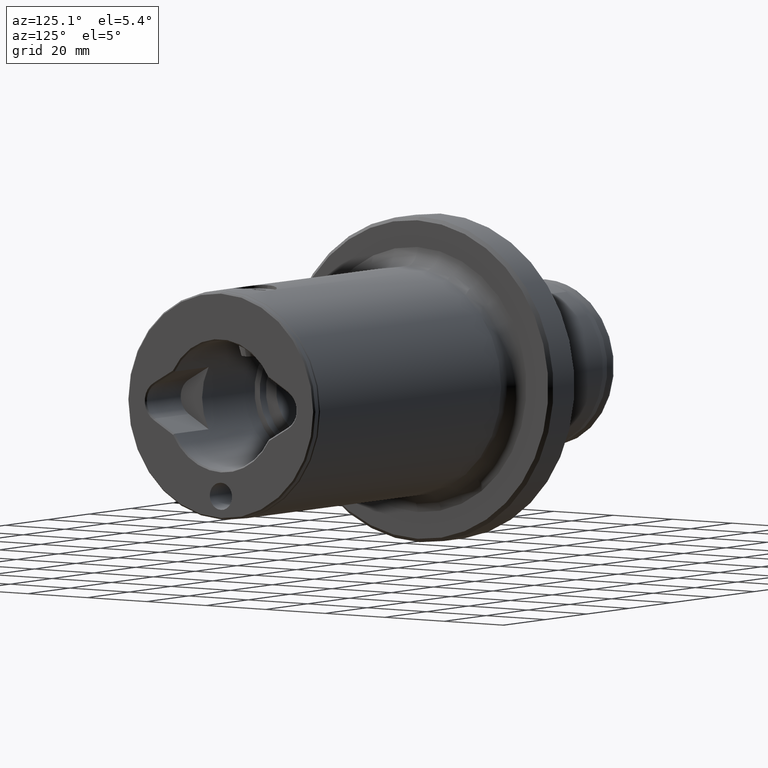
[diagram: clean part render]
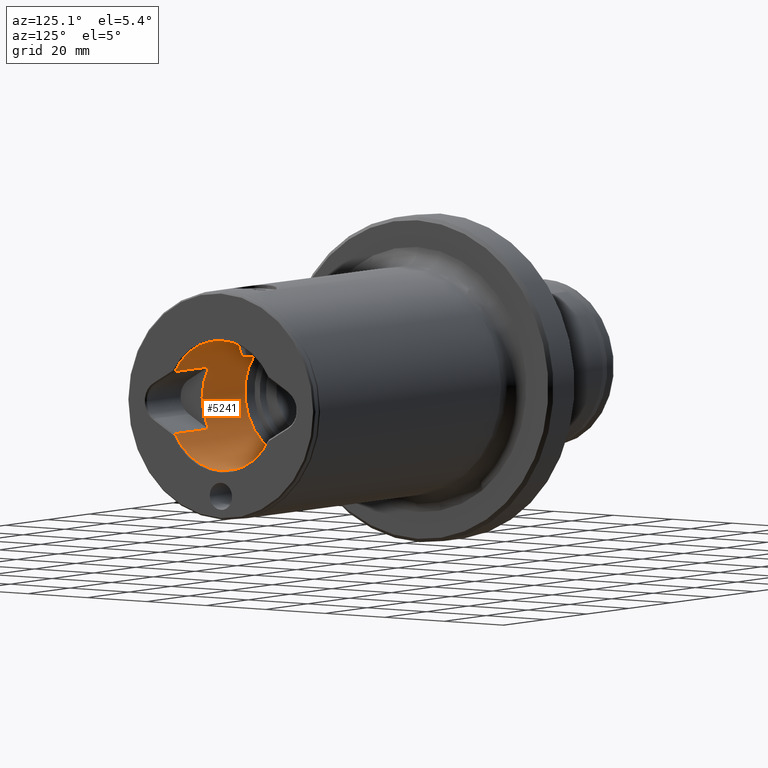
[diagram: same view with one face highlighted and labeled with its STEP entity id]
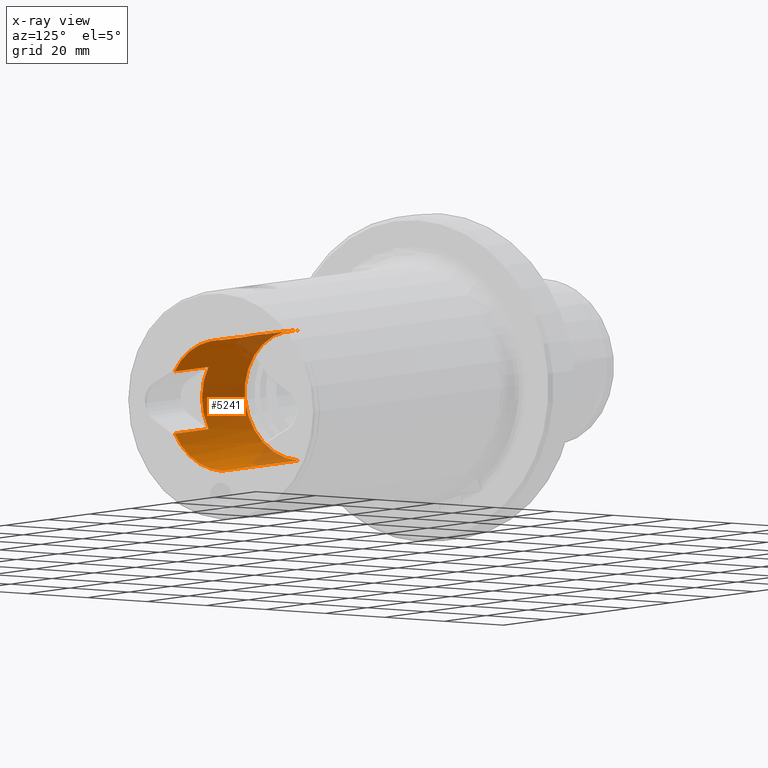
[diagram: x-ray of the same camera — body ghosted, the highlighted face saturated]
A machine part, auxiliary view. The second image highlights one B-rep face of the part: STEP entity #5241.
The next image is the same camera in x-ray: the body ghosted, the highlighted face saturated — about 11% of this face is hidden behind the body in this view.
In plain terms, the highlighted cylindrical surface (partial cylindrical patch) has radius 18 mm, axis along (1, 0, 0).
Its self-contained STEP definition (entity closure, byte-faithful):
#15 = CYLINDRICAL_SURFACE ( 'NONE', #3115, 17.99999999999999600 ) ;
#79 = ORIENTED_EDGE ( 'NONE', *, *, #2881, .T. ) ;
#98 = B_SPLINE_CURVE_WITH_KNOTS ( 'NONE', 3,
 ( #4744, #5174, #2666, #121, #3088, #543, #3496, #983, #3922, #1389, #4347, #1830, #4761, #2265, #5197, #2687, #138, #3104, #569, #3513, #997, #3943, #1408, #4367, #1844, #4785, #2284, #5209, #2704, #157, #3119, #582, #3540, #1013, #3957, #1429, #4385, #1858, #4803, #2304, #5224 ),
 .UNSPECIFIED., .F., .F.,
 ( 4, 2, 2, 2, 2, 2, 2, 2, 2, 2, 2, 2, 2, 1, 2, 2, 2, 2, 2, 2, 4 ),
 ( 0.4999393601060354600, 0.5624469400927913900, 0.5780738350894801800, 0.5937007300861688600, 0.6249545200795477700, 0.6562083100729265700, 0.6874621000663054800, 0.6952755475646490400, 0.7030889950629926100, 0.7187158900596799500, 0.7499696800530544200, 0.8124772600398034700, 0.8202907075381463700, 0.8281041550364891500, 0.8437310500331728400, 0.8749848400265379800, 0.9062386300199032400, 0.9374924200132683800, 0.9531193150099515100, 0.9687462100066344100, 1.000000000000000000 ),
 .UNSPECIFIED. ) ;
#121 = CARTESIAN_POINT ( 'NONE',  ( 134.8553877485280200, -2.259869934154903300, 17.85838690533051900 ) ) ;
#138 = CARTESIAN_POINT ( 'NONE',  ( 138.2421820709729700, -5.184590503747593000, 17.23719180521658200 ) ) ;
#157 = CARTESIAN_POINT ( 'NONE',  ( 143.6510817687996000, -4.104981562273033000, 17.52758418726095600 ) ) ;
#198 = LINE ( 'NONE', #1112, #3433 ) ;
#335 = DIRECTION ( 'NONE',  ( 1.000000000000000000, -0.0000000000000000000, -0.0000000000000000000 ) ) ;
#379 = CARTESIAN_POINT ( 'NONE',  ( 155.9999999999999700, 2.204364238465235000E-015, 17.99999999999999600 ) ) ;
#533 = CIRCLE ( 'NONE', #2672, 17.99999999999999600 ) ;
#542 = EDGE_CURVE ( 'NONE', #4459, #4904, #3835, .T. ) ;
#543 = CARTESIAN_POINT ( 'NONE',  ( 135.1062386094108100, -2.736256363605770000, 17.79152043645547100 ) ) ;
#569 = CARTESIAN_POINT ( 'NONE',  ( 138.6853133112308300, -5.307688011081166800, 17.19970357337057700 ) ) ;
#582 = CARTESIAN_POINT ( 'NONE',  ( 144.3987432988279500, -3.327418415042896700, 17.69228633973058300 ) ) ;
#603 = VECTOR ( 'NONE', #4631, 1000.000000000000000 ) ;
#774 = DIRECTION ( 'NONE',  ( 0.0000000000000000000, 0.0000000000000000000, -1.000000000000000000 ) ) ;
#926 = EDGE_CURVE ( 'NONE', #1607, #2550, #533, .T. ) ;
#937 = EDGE_CURVE ( 'NONE', #4769, #4904, #2523, .T. ) ;
#983 = CARTESIAN_POINT ( 'NONE',  ( 135.5015406647113400, -3.328951150093205900, 17.69200030245701800 ) ) ;
#997 = CARTESIAN_POINT ( 'NONE',  ( 139.5849843997453400, -5.448345059902512100, 17.15562695469514800 ) ) ;
#1008 = DIRECTION ( 'NONE',  ( 1.000000000000000000, 0.0000000000000000000, 0.0000000000000000000 ) ) ;
#1013 = CARTESIAN_POINT ( 'NONE',  ( 144.9728713124811200, -2.425726262018358600, 17.83900074526804100 ) ) ;
#1109 = CARTESIAN_POINT ( 'NONE',  ( 145.5500000557364300, 2.186384291718122300E-015, 17.99999999999999600 ) ) ;
#1112 = CARTESIAN_POINT ( 'NONE',  ( 155.9999999999999700, -15.81644489633137600, 8.593024545601679200 ) ) ;
#1307 = EDGE_CURVE ( 'NONE', #5020, #2550, #198, .T. ) ;
#1389 = CARTESIAN_POINT ( 'NONE',  ( 136.2497741910290800, -4.105033836991080600, 17.52755298563754500 ) ) ;
#1408 = CARTESIAN_POINT ( 'NONE',  ( 141.4007162432091900, -5.309507178506006400, 17.20163152670566100 ) ) ;
#1426 = AXIS2_PLACEMENT_3D ( 'NONE', #4992, #2490, #5429 ) ;
#1429 = CARTESIAN_POINT ( 'NONE',  ( 145.2519501686404900, -1.750653038752604300, 17.91549451174287800 ) ) ;
#1492 = VERTEX_POINT ( 'NONE', #1804 ) ;
#1494 = EDGE_CURVE ( 'NONE', #1492, #2707, #98, .T. ) ;
#1590 = EDGE_CURVE ( 'NONE', #1607, #4769, #2127, .T. ) ;
#1600 = ORIENTED_EDGE ( 'NONE', *, *, #1307, .T. ) ;
#1607 = VERTEX_POINT ( 'NONE', #4859 ) ;
#1647 = DIRECTION ( 'NONE',  ( 1.000000000000000000, 0.0000000000000000000, 0.0000000000000000000 ) ) ;
#1655 = DIRECTION ( 'NONE',  ( 1.000000000000000000, -0.0000000000000000000, -0.0000000000000000000 ) ) ;
#1709 = CARTESIAN_POINT ( 'NONE',  ( 118.9999999999999700, 0.0000000000000000000, -17.99999999999999600 ) ) ;
#1804 = CARTESIAN_POINT ( 'NONE',  ( 134.3500003317284900, -5.277824731416573000E-012, 17.99999995459508600 ) ) ;
#1830 = CARTESIAN_POINT ( 'NONE',  ( 137.1358821927410600, -4.719969868711367600, 17.37131491992410300 ) ) ;
#1843 = CARTESIAN_POINT ( 'NONE',  ( 155.5999999999999700, -15.81644489633137600, 8.593024545601679200 ) ) ;
#1844 = CARTESIAN_POINT ( 'NONE',  ( 142.2709169055840200, -4.954929551665712100, 17.30463112033646000 ) ) ;
#1858 = CARTESIAN_POINT ( 'NONE',  ( 145.4055956993330500, -1.234085965596167100, 17.95849409042465100 ) ) ;
#1921 = CIRCLE ( 'NONE', #1426, 17.99999999999999600 ) ;
#1964 = AXIS2_PLACEMENT_3D ( 'NONE', #3528, #1008, #3952 ) ;
#1985 = EDGE_CURVE ( 'NONE', #2378, #5020, #5141, .T. ) ;
#2035 = DIRECTION ( 'NONE',  ( -1.000000000000000000, 0.0000000000000000000, 0.0000000000000000000 ) ) ;
#2127 = LINE ( 'NONE', #3591, #3111 ) ;
#2262 = VECTOR ( 'NONE', #1655, 1000.000000000000000 ) ;
#2265 = CARTESIAN_POINT ( 'NONE',  ( 137.8896355800012800, -5.060840228162621000, 17.27394595637852600 ) ) ;
#2276 = CARTESIAN_POINT ( 'NONE',  ( 118.9999999999999700, 2.204364238465235000E-015, 17.99999999999999600 ) ) ;
#2284 = CARTESIAN_POINT ( 'NONE',  ( 142.6836671657002900, -4.758185932834043000, 17.36008250346591500 ) ) ;
#2304 = CARTESIAN_POINT ( 'NONE',  ( 145.5500973636864000, -0.3577881575387458800, 18.00000000000000000 ) ) ;
#2378 = VERTEX_POINT ( 'NONE', #4153 ) ;
#2490 = DIRECTION ( 'NONE',  ( -1.000000000000000000, -0.0000000000000000000, -0.0000000000000000000 ) ) ;
#2498 = DIRECTION ( 'NONE',  ( -1.000000000000000000, -0.0000000000000000000, -0.0000000000000000000 ) ) ;
#2523 = CIRCLE ( 'NONE', #3777, 17.99999999999999600 ) ;
#2550 = VERTEX_POINT ( 'NONE', #5156 ) ;
#2562 = ORIENTED_EDGE ( 'NONE', *, *, #542, .F. ) ;
#2666 = CARTESIAN_POINT ( 'NONE',  ( 134.4942237618243700, -1.414237073121250400, 17.95727855710485700 ) ) ;
#2672 = AXIS2_PLACEMENT_3D ( 'NONE', #5000, #2498, #5445 ) ;
#2687 = CARTESIAN_POINT ( 'NONE',  ( 138.1540586457214200, -5.155991632739626200, 17.24577582793682900 ) ) ;
#2704 = CARTESIAN_POINT ( 'NONE',  ( 143.3704535850512500, -4.328939997216825700, 17.47286705039676500 ) ) ;
#2707 = VERTEX_POINT ( 'NONE', #1109 ) ;
#2881 = EDGE_CURVE ( 'NONE', #4459, #3403, #1921, .T. ) ;
#2897 = CARTESIAN_POINT ( 'NONE',  ( 155.5999999999999700, 0.0000000000000000000, -17.99999999999999600 ) ) ;
#2910 = ORIENTED_EDGE ( 'NONE', *, *, #4484, .T. ) ;
#2928 = EDGE_CURVE ( 'NONE', #2707, #2378, #3357, .T. ) ;
#3088 = CARTESIAN_POINT ( 'NONE',  ( 134.9338657934714800, -2.421429082389678500, 17.83709560234353800 ) ) ;
#3104 = CARTESIAN_POINT ( 'NONE',  ( 138.5073903847277000, -5.263754377368879700, 17.21324867479211200 ) ) ;
#3111 = VECTOR ( 'NONE', #3998, 1000.000000000000000 ) ;
#3115 = AXIS2_PLACEMENT_3D ( 'NONE', #3723, #335, #774 ) ;
#3119 = CARTESIAN_POINT ( 'NONE',  ( 144.1701491794073900, -3.598981352381384700, 17.63843570992997600 ) ) ;
#3357 = LINE ( 'NONE', #379, #2262 ) ;
#3394 = ORIENTED_EDGE ( 'NONE', *, *, #1985, .T. ) ;
#3403 = VERTEX_POINT ( 'NONE', #2276 ) ;
#3433 = VECTOR ( 'NONE', #2035, 1000.000000000000000 ) ;
#3496 = CARTESIAN_POINT ( 'NONE',  ( 135.1996473635836100, -2.888385612857776500, 17.76736970310736700 ) ) ;
#3513 = CARTESIAN_POINT ( 'NONE',  ( 139.2224342427397500, -5.413143443228021200, 17.16692454116935100 ) ) ;
#3528 = CARTESIAN_POINT ( 'NONE',  ( 155.5999999999999700, 0.0000000000000000000, 0.0000000000000000000 ) ) ;
#3540 = CARTESIAN_POINT ( 'NONE',  ( 144.8006542547499900, -2.740258510947836800, 17.79268648993069100 ) ) ;
#3591 = CARTESIAN_POINT ( 'NONE',  ( 155.9999999999999700, -15.81644489633136900, -8.593024545601700500 ) ) ;
#3665 = EDGE_LOOP ( 'NONE', ( #79, #2910, #4332, #4384, #3394, #1600, #4764, #5026, #4097, #2562 ) ) ;
#3723 = CARTESIAN_POINT ( 'NONE',  ( 155.9999999999999700, 0.0000000000000000000, 0.0000000000000000000 ) ) ;
#3777 = AXIS2_PLACEMENT_3D ( 'NONE', #4177, #1647, #4598 ) ;
#3816 = CARTESIAN_POINT ( 'NONE',  ( 155.9999999999999700, 0.0000000000000000000, -17.99999999999999600 ) ) ;
#3835 = LINE ( 'NONE', #3816, #603 ) ;
#3922 = CARTESIAN_POINT ( 'NONE',  ( 135.7316922502756400, -3.601554684069462600, 17.63789160656201500 ) ) ;
#3943 = CARTESIAN_POINT ( 'NONE',  ( 140.6860434787610400, -5.449251162837165400, 17.15533917373901900 ) ) ;
#3952 = DIRECTION ( 'NONE',  ( 0.0000000000000000000, 0.0000000000000000000, -1.000000000000000000 ) ) ;
#3957 = CARTESIAN_POINT ( 'NONE',  ( 145.1880892687328000, -1.922483670067331100, 17.89783731097989200 ) ) ;
#3998 = DIRECTION ( 'NONE',  ( 1.000000000000000000, -0.0000000000000000000, -0.0000000000000000000 ) ) ;
#4060 = VECTOR ( 'NONE', #5074, 1000.000000000000000 ) ;
#4097 = ORIENTED_EDGE ( 'NONE', *, *, #937, .T. ) ;
#4153 = CARTESIAN_POINT ( 'NONE',  ( 155.5999999999999700, 2.204364238465235000E-015, 17.99999999999999600 ) ) ;
#4177 = CARTESIAN_POINT ( 'NONE',  ( 155.5999999999999700, 0.0000000000000000000, 0.0000000000000000000 ) ) ;
#4332 = ORIENTED_EDGE ( 'NONE', *, *, #1494, .T. ) ;
#4347 = CARTESIAN_POINT ( 'NONE',  ( 136.5316128751587700, -4.329452284623299000, 17.47273706446391700 ) ) ;
#4367 = CARTESIAN_POINT ( 'NONE',  ( 142.1877104791066100, -4.990890963252550900, 17.29428711074406500 ) ) ;
#4384 = ORIENTED_EDGE ( 'NONE', *, *, #2928, .T. ) ;
#4385 = CARTESIAN_POINT ( 'NONE',  ( 145.3604115613617300, -1.407136415936634900, 17.94574313783990500 ) ) ;
#4387 = FACE_OUTER_BOUND ( 'NONE', #3665, .T. ) ;
#4459 = VERTEX_POINT ( 'NONE', #1709 ) ;
#4484 = EDGE_CURVE ( 'NONE', #3403, #1492, #5182, .T. ) ;
#4598 = DIRECTION ( 'NONE',  ( 0.0000000000000000000, 0.0000000000000000000, -1.000000000000000000 ) ) ;
#4631 = DIRECTION ( 'NONE',  ( 1.000000000000000000, -0.0000000000000000000, -0.0000000000000000000 ) ) ;
#4658 = CARTESIAN_POINT ( 'NONE',  ( 155.9999999999999700, 2.204364238465235000E-015, 17.99999999999999600 ) ) ;
#4744 = CARTESIAN_POINT ( 'NONE',  ( 134.3500003317284900, -5.277824731416573000E-012, 17.99999995459508600 ) ) ;
#4761 = CARTESIAN_POINT ( 'NONE',  ( 137.4591455386694200, -4.886888320070784900, 17.32452960542243800 ) ) ;
#4764 = ORIENTED_EDGE ( 'NONE', *, *, #926, .F. ) ;
#4769 = VERTEX_POINT ( 'NONE', #5323 ) ;
#4785 = CARTESIAN_POINT ( 'NONE',  ( 142.4375990955139200, -4.878331575782257600, 17.32638064079204200 ) ) ;
#4803 = CARTESIAN_POINT ( 'NONE',  ( 145.5140084380792900, -0.7112546521830676000, 17.98933099047720300 ) ) ;
#4859 = CARTESIAN_POINT ( 'NONE',  ( 139.3999999999490700, -15.81644489633136500, -8.593024545601704000 ) ) ;
#4904 = VERTEX_POINT ( 'NONE', #2897 ) ;
#4992 = CARTESIAN_POINT ( 'NONE',  ( 118.9999999999999700, 0.0000000000000000000, 0.0000000000000000000 ) ) ;
#5000 = CARTESIAN_POINT ( 'NONE',  ( 139.3999999999490700, 0.0000000000000000000, 0.0000000000000000000 ) ) ;
#5020 = VERTEX_POINT ( 'NONE', #1843 ) ;
#5026 = ORIENTED_EDGE ( 'NONE', *, *, #1590, .T. ) ;
#5074 = DIRECTION ( 'NONE',  ( 1.000000000000000000, -0.0000000000000000000, -0.0000000000000000000 ) ) ;
#5141 = CIRCLE ( 'NONE', #1964, 17.99999999999999600 ) ;
#5156 = CARTESIAN_POINT ( 'NONE',  ( 139.3999999999490700, -15.81644489633137200, 8.593024545601686300 ) ) ;
#5174 = CARTESIAN_POINT ( 'NONE',  ( 134.3498391802786200, -0.7161850593794483200, 17.99999999999936400 ) ) ;
#5182 = LINE ( 'NONE', #4658, #4060 ) ;
#5197 = CARTESIAN_POINT ( 'NONE',  ( 137.9783704872181700, -5.094353133873407400, 17.26408409883725200 ) ) ;
#5209 = CARTESIAN_POINT ( 'NONE',  ( 142.9178695917617900, -4.622213538869892200, 17.39670494996606800 ) ) ;
#5224 = CARTESIAN_POINT ( 'NONE',  ( 145.5500000557364300, 2.186384291718122300E-015, 17.99999999999999600 ) ) ;
#5241 = ADVANCED_FACE ( 'NONE', ( #4387 ), #15, .F. ) ;
#5323 = CARTESIAN_POINT ( 'NONE',  ( 155.5999999999999700, -15.81644489633136900, -8.593024545601700500 ) ) ;
#5429 = DIRECTION ( 'NONE',  ( 0.0000000000000000000, 0.0000000000000000000, -1.000000000000000000 ) ) ;
#5445 = DIRECTION ( 'NONE',  ( 0.0000000000000000000, 0.0000000000000000000, -1.000000000000000000 ) ) ;